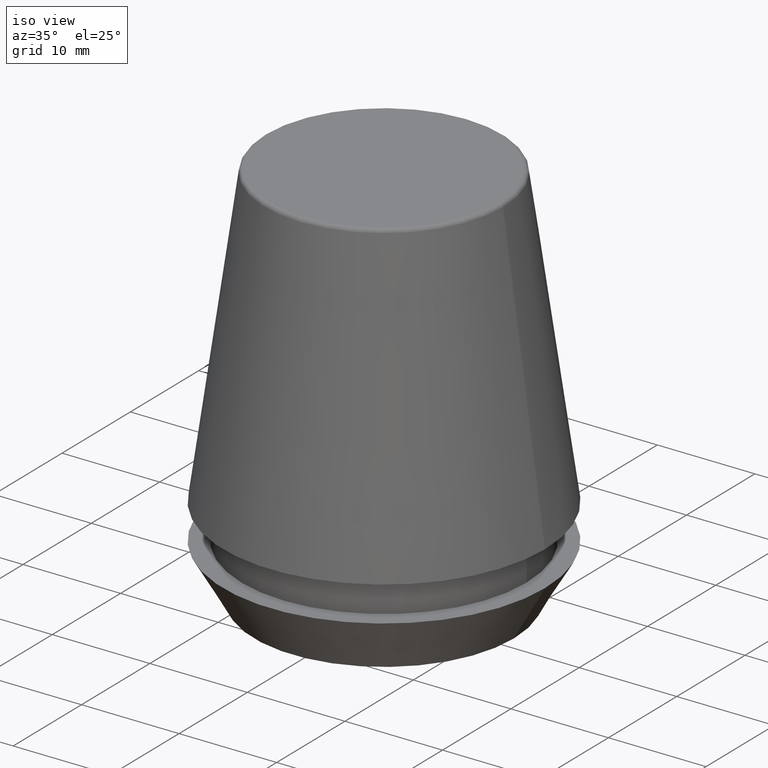
[diagram: clean part render]
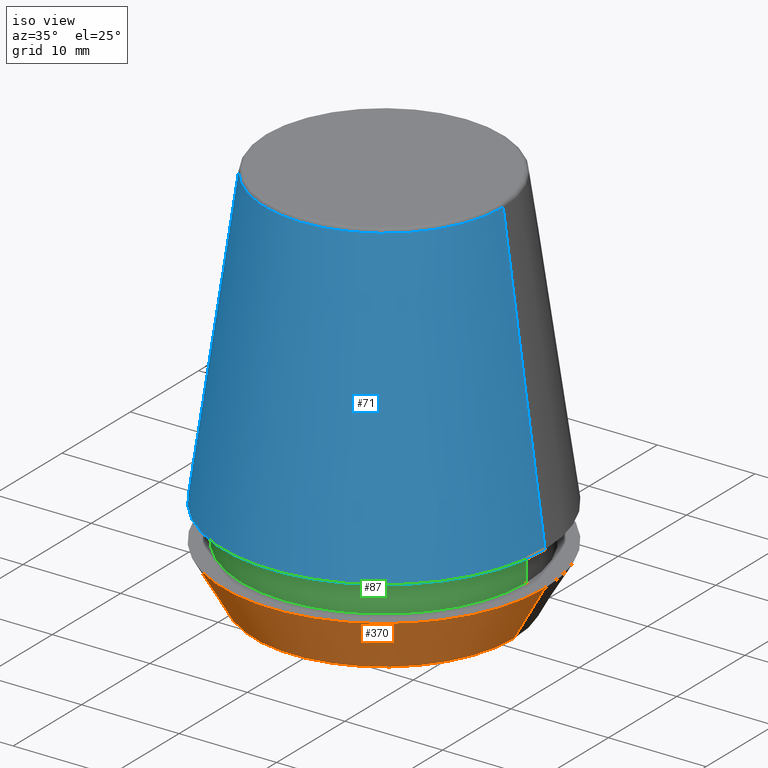
[diagram: same view with three faces highlighted in distinct colors, each labeled with its STEP entity id]
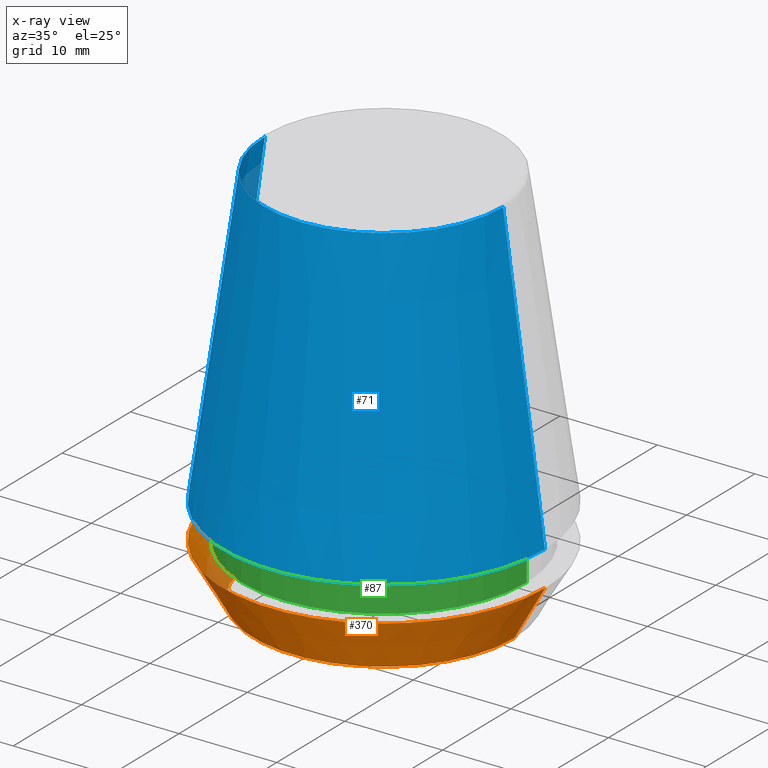
[diagram: x-ray of the same camera — body ghosted, the three highlighted faces saturated]
A machine part, iso view with three faces highlighted in distinct colors.
The next image is the same camera in x-ray (body ghosted, the three faces saturated) — at least one of them is partly hidden behind the body in this view.
Their STEP definitions:

[orange] entity #370 — the highlighted conical surface has half-angle 30 deg.
#2 = DIRECTION ( 'NONE',  ( -0.0000000000000000000, -0.0000000000000000000, 1.000000000000000000 ) ) ;
#6 = CARTESIAN_POINT ( 'NONE',  ( 0.0000000000000000000, 0.0000000000000000000, 5.500000000000005300 ) ) ;
#12 = CIRCLE ( 'NONE', #369, 16.50000000000000000 ) ;
#17 = EDGE_CURVE ( 'NONE', #118, #234, #12, .T. ) ;
#26 = EDGE_CURVE ( 'NONE', #257, #118, #202, .T. ) ;
#35 = AXIS2_PLACEMENT_3D ( 'NONE', #116, #2, #245 ) ;
#57 = EDGE_CURVE ( 'NONE', #257, #292, #134, .T. ) ;
#116 = CARTESIAN_POINT ( 'NONE',  ( 0.0000000000000000000, 0.0000000000000000000, 0.0000000000000000000 ) ) ;
#118 = VERTEX_POINT ( 'NONE', #355 ) ;
#128 = ORIENTED_EDGE ( 'NONE', *, *, #57, .T. ) ;
#134 = CIRCLE ( 'NONE', #35, 13.32457351945710200 ) ;
#139 = CARTESIAN_POINT ( 'NONE',  ( -13.32457351945710200, 1.826228424826902600E-015, 0.0000000000000000000 ) ) ;
#156 = DIRECTION ( 'NONE',  ( -0.4999999999999947300, 6.123233995736700700E-017, 0.8660254037844418200 ) ) ;
#160 = EDGE_CURVE ( 'NONE', #292, #234, #232, .T. ) ;
#161 = DIRECTION ( 'NONE',  ( -0.0000000000000000000, -0.0000000000000000000, 1.000000000000000000 ) ) ;
#174 = CONICAL_SURFACE ( 'NONE', #189, 13.32457351945710200, 0.5235987755982927100 ) ;
#189 = AXIS2_PLACEMENT_3D ( 'NONE', #328, #238, #335 ) ;
#191 = CARTESIAN_POINT ( 'NONE',  ( -13.32457351945710200, 1.631789631060672300E-015, 0.0000000000000000000 ) ) ;
#200 = ORIENTED_EDGE ( 'NONE', *, *, #26, .F. ) ;
#202 = LINE ( 'NONE', #191, #346 ) ;
#213 = CARTESIAN_POINT ( 'NONE',  ( 13.32457351945710200, 0.0000000000000000000, 0.0000000000000000000 ) ) ;
#214 = FACE_OUTER_BOUND ( 'NONE', #338, .T. ) ;
#232 = LINE ( 'NONE', #213, #320 ) ;
#234 = VERTEX_POINT ( 'NONE', #266 ) ;
#238 = DIRECTION ( 'NONE',  ( -0.0000000000000000000, -0.0000000000000000000, 1.000000000000000000 ) ) ;
#245 = DIRECTION ( 'NONE',  ( 1.000000000000000000, 0.0000000000000000000, 0.0000000000000000000 ) ) ;
#257 = VERTEX_POINT ( 'NONE', #139 ) ;
#266 = CARTESIAN_POINT ( 'NONE',  ( 16.50000000000000000, 0.0000000000000000000, 5.500000000000005300 ) ) ;
#272 = DIRECTION ( 'NONE',  ( 1.000000000000000000, 0.0000000000000000000, 0.0000000000000000000 ) ) ;
#292 = VERTEX_POINT ( 'NONE', #306 ) ;
#306 = CARTESIAN_POINT ( 'NONE',  ( 13.32457351945710200, 0.0000000000000000000, 0.0000000000000000000 ) ) ;
#320 = VECTOR ( 'NONE', #352, 999.9999999999998900 ) ;
#328 = CARTESIAN_POINT ( 'NONE',  ( 0.0000000000000000000, 0.0000000000000000000, 0.0000000000000000000 ) ) ;
#335 = DIRECTION ( 'NONE',  ( 1.000000000000000000, 0.0000000000000000000, 0.0000000000000000000 ) ) ;
#338 = EDGE_LOOP ( 'NONE', ( #200, #128, #371, #379 ) ) ;
#346 = VECTOR ( 'NONE', #156, 999.9999999999998900 ) ;
#352 = DIRECTION ( 'NONE',  ( 0.4999999999999947300, 0.0000000000000000000, 0.8660254037844418200 ) ) ;
#355 = CARTESIAN_POINT ( 'NONE',  ( -16.50000000000000000, 2.020667218593133100E-015, 5.500000000000005300 ) ) ;
#369 = AXIS2_PLACEMENT_3D ( 'NONE', #6, #161, #272 ) ;
#370 = ADVANCED_FACE ( 'NONE', ( #214 ), #174, .T. ) ;
#371 = ORIENTED_EDGE ( 'NONE', *, *, #160, .T. ) ;
#379 = ORIENTED_EDGE ( 'NONE', *, *, #17, .F. ) ;

[blue] entity #71 — the highlighted conical surface has half-angle 8 deg.
#11 = DIRECTION ( 'NONE',  ( 1.000000000000000000, 0.0000000000000000000, 0.0000000000000000000 ) ) ;
#14 = VERTEX_POINT ( 'NONE', #69 ) ;
#21 = LINE ( 'NONE', #250, #63 ) ;
#48 = AXIS2_PLACEMENT_3D ( 'NONE', #297, #91, #361 ) ;
#58 = DIRECTION ( 'NONE',  ( -0.1391731009600586900, 0.0000000000000000000, -0.9902680687415712500 ) ) ;
#63 = VECTOR ( 'NONE', #58, 1000.000000000000000 ) ;
#69 = CARTESIAN_POINT ( 'NONE',  ( -12.20600611160694300, 0.0000000000000000000, 39.65566924038402900 ) ) ;
#70 = VERTEX_POINT ( 'NONE', #363 ) ;
#71 = ADVANCED_FACE ( 'NONE', ( #278 ), #205, .T. ) ;
#77 = EDGE_LOOP ( 'NONE', ( #80, #101, #78, #329 ) ) ;
#78 = ORIENTED_EDGE ( 'NONE', *, *, #330, .T. ) ;
#80 = ORIENTED_EDGE ( 'NONE', *, *, #372, .F. ) ;
#91 = DIRECTION ( 'NONE',  ( 0.0000000000000000000, 0.0000000000000000000, -1.000000000000000000 ) ) ;
#101 = ORIENTED_EDGE ( 'NONE', *, *, #183, .F. ) ;
#103 = DIRECTION ( 'NONE',  ( -0.0000000000000000000, -0.0000000000000000000, 1.000000000000000000 ) ) ;
#106 = VECTOR ( 'NONE', #277, 1000.000000000000000 ) ;
#141 = DIRECTION ( 'NONE',  ( 1.000000000000000000, 0.0000000000000000000, 0.0000000000000000000 ) ) ;
#153 = CIRCLE ( 'NONE', #365, 16.50032537154048700 ) ;
#172 = AXIS2_PLACEMENT_3D ( 'NONE', #322, #327, #141 ) ;
#183 = EDGE_CURVE ( 'NONE', #14, #70, #207, .T. ) ;
#205 = CONICAL_SURFACE ( 'NONE', #48, 16.50032537154048700, 0.1396263401595395900 ) ;
#207 = CIRCLE ( 'NONE', #172, 12.20600611160694300 ) ;
#210 = CARTESIAN_POINT ( 'NONE',  ( 16.50032537154048700, 2.020707065114692300E-015, 9.099999999999997900 ) ) ;
#211 = CARTESIAN_POINT ( 'NONE',  ( 16.50032537154048700, 2.020707065114692300E-015, 9.099999999999997900 ) ) ;
#222 = VERTEX_POINT ( 'NONE', #210 ) ;
#250 = CARTESIAN_POINT ( 'NONE',  ( -16.50032537154048700, 0.0000000000000000000, 9.099999999999997900 ) ) ;
#261 = LINE ( 'NONE', #211, #106 ) ;
#275 = CARTESIAN_POINT ( 'NONE',  ( -16.50032537154048700, 0.0000000000000000000, 9.099999999999997900 ) ) ;
#277 = DIRECTION ( 'NONE',  ( 0.1391731009600586900, 1.704378926181473100E-017, -0.9902680687415712500 ) ) ;
#278 = FACE_OUTER_BOUND ( 'NONE', #77, .T. ) ;
#297 = CARTESIAN_POINT ( 'NONE',  ( 0.0000000000000000000, 0.0000000000000000000, 9.099999999999997900 ) ) ;
#298 = VERTEX_POINT ( 'NONE', #275 ) ;
#322 = CARTESIAN_POINT ( 'NONE',  ( 0.0000000000000000000, 0.0000000000000000000, 39.65566924038402900 ) ) ;
#327 = DIRECTION ( 'NONE',  ( -0.0000000000000000000, -0.0000000000000000000, 1.000000000000000000 ) ) ;
#329 = ORIENTED_EDGE ( 'NONE', *, *, #349, .T. ) ;
#330 = EDGE_CURVE ( 'NONE', #14, #298, #21, .T. ) ;
#349 = EDGE_CURVE ( 'NONE', #298, #222, #153, .T. ) ;
#356 = CARTESIAN_POINT ( 'NONE',  ( 0.0000000000000000000, 0.0000000000000000000, 9.099999999999997900 ) ) ;
#361 = DIRECTION ( 'NONE',  ( -1.000000000000000000, 0.0000000000000000000, 0.0000000000000000000 ) ) ;
#363 = CARTESIAN_POINT ( 'NONE',  ( 12.20600611160694300, 1.757755848304969800E-015, 39.65566924038402900 ) ) ;
#365 = AXIS2_PLACEMENT_3D ( 'NONE', #356, #103, #11 ) ;
#372 = EDGE_CURVE ( 'NONE', #70, #222, #261, .T. ) ;

[green] entity #87 — the highlighted cylindrical surface (partial cylindrical patch) has radius 14.6 mm, axis along (-0, -0, 1).
#1 = DIRECTION ( 'NONE',  ( -0.0000000000000000000, -0.0000000000000000000, 1.000000000000000000 ) ) ;
#4 = EDGE_CURVE ( 'NONE', #102, #286, #310, .T. ) ;
#15 = ORIENTED_EDGE ( 'NONE', *, *, #120, .T. ) ;
#31 = ORIENTED_EDGE ( 'NONE', *, *, #154, .F. ) ;
#32 = DIRECTION ( 'NONE',  ( -0.0000000000000000000, -0.0000000000000000000, 1.000000000000000000 ) ) ;
#45 = AXIS2_PLACEMENT_3D ( 'NONE', #195, #194, #136 ) ;
#46 = CARTESIAN_POINT ( 'NONE',  ( 14.60000000000000000, 0.0000000000000000000, 5.500000000000005300 ) ) ;
#49 = CIRCLE ( 'NONE', #67, 14.60000000000000000 ) ;
#64 = CARTESIAN_POINT ( 'NONE',  ( -14.60000000000000000, 1.787984326755135800E-015, 101.8074564848000400 ) ) ;
#67 = AXIS2_PLACEMENT_3D ( 'NONE', #131, #99, #386 ) ;
#87 = ADVANCED_FACE ( 'NONE', ( #316 ), #162, .T. ) ;
#97 = CARTESIAN_POINT ( 'NONE',  ( -14.60000000000000000, 1.787984326755135800E-015, 5.500000000000005300 ) ) ;
#99 = DIRECTION ( 'NONE',  ( -0.0000000000000000000, -0.0000000000000000000, 1.000000000000000000 ) ) ;
#102 = VERTEX_POINT ( 'NONE', #241 ) ;
#113 = VECTOR ( 'NONE', #288, 1000.000000000000000 ) ;
#120 = EDGE_CURVE ( 'NONE', #303, #375, #49, .T. ) ;
#131 = CARTESIAN_POINT ( 'NONE',  ( 0.0000000000000000000, 0.0000000000000000000, 5.500000000000005300 ) ) ;
#136 = DIRECTION ( 'NONE',  ( 1.000000000000000000, 0.0000000000000000000, 0.0000000000000000000 ) ) ;
#144 = ORIENTED_EDGE ( 'NONE', *, *, #4, .F. ) ;
#152 = DIRECTION ( 'NONE',  ( 1.000000000000000000, 0.0000000000000000000, 0.0000000000000000000 ) ) ;
#154 = EDGE_CURVE ( 'NONE', #303, #102, #267, .T. ) ;
#162 = CYLINDRICAL_SURFACE ( 'NONE', #374, 14.60000000000000000 ) ;
#178 = VECTOR ( 'NONE', #32, 1000.000000000000000 ) ;
#185 = CARTESIAN_POINT ( 'NONE',  ( 14.60000000000000000, 0.0000000000000000000, 101.8074564848000400 ) ) ;
#194 = DIRECTION ( 'NONE',  ( -0.0000000000000000000, -0.0000000000000000000, 1.000000000000000000 ) ) ;
#195 = CARTESIAN_POINT ( 'NONE',  ( 0.0000000000000000000, 0.0000000000000000000, 9.099999999999997900 ) ) ;
#219 = CARTESIAN_POINT ( 'NONE',  ( 0.0000000000000000000, 0.0000000000000000000, 101.8074564848000400 ) ) ;
#241 = CARTESIAN_POINT ( 'NONE',  ( -14.60000000000000000, 1.787984326755135800E-015, 9.099999999999997900 ) ) ;
#242 = CARTESIAN_POINT ( 'NONE',  ( 14.60000000000000000, 0.0000000000000000000, 9.099999999999997900 ) ) ;
#249 = EDGE_CURVE ( 'NONE', #375, #286, #354, .T. ) ;
#267 = LINE ( 'NONE', #64, #178 ) ;
#281 = ORIENTED_EDGE ( 'NONE', *, *, #249, .T. ) ;
#286 = VERTEX_POINT ( 'NONE', #242 ) ;
#288 = DIRECTION ( 'NONE',  ( -0.0000000000000000000, -0.0000000000000000000, 1.000000000000000000 ) ) ;
#303 = VERTEX_POINT ( 'NONE', #97 ) ;
#310 = CIRCLE ( 'NONE', #45, 14.60000000000000000 ) ;
#316 = FACE_OUTER_BOUND ( 'NONE', #359, .T. ) ;
#354 = LINE ( 'NONE', #185, #113 ) ;
#359 = EDGE_LOOP ( 'NONE', ( #31, #15, #281, #144 ) ) ;
#374 = AXIS2_PLACEMENT_3D ( 'NONE', #219, #1, #152 ) ;
#375 = VERTEX_POINT ( 'NONE', #46 ) ;
#386 = DIRECTION ( 'NONE',  ( 1.000000000000000000, 0.0000000000000000000, 0.0000000000000000000 ) ) ;